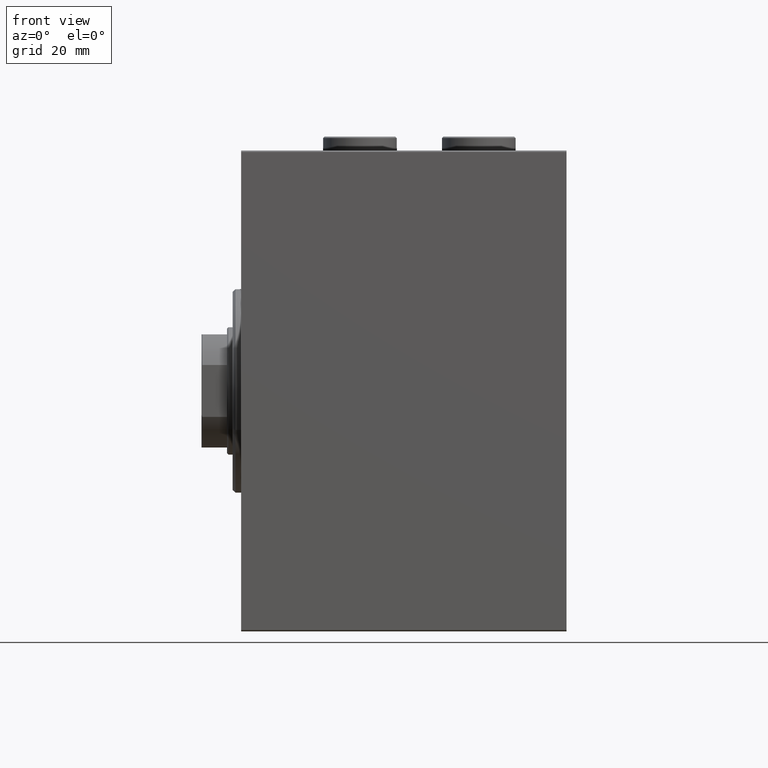
[diagram: clean part render]
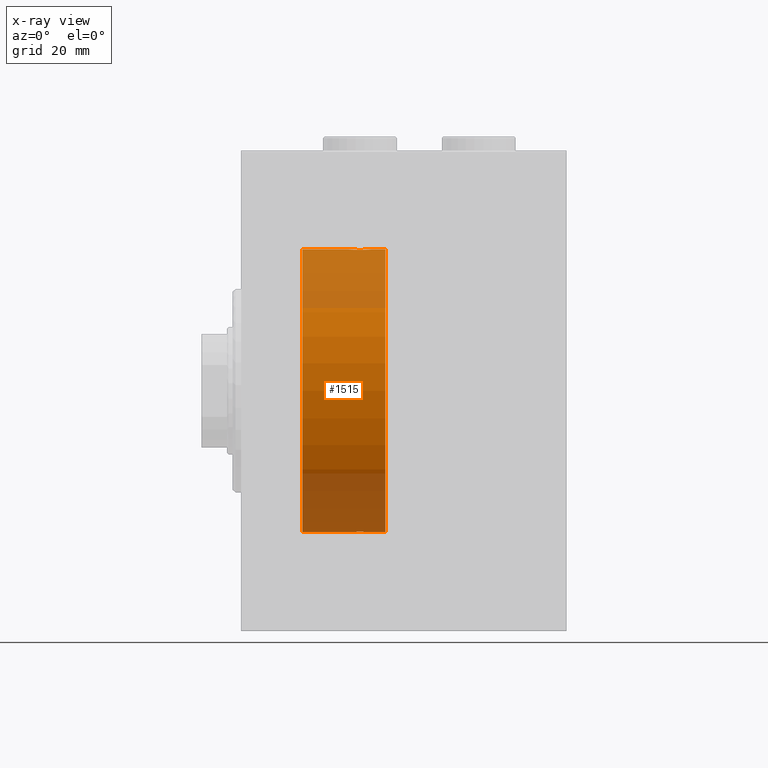
[diagram: x-ray — body ghosted, one internal face saturated and labeled with its STEP entity id]
A machine part, front view, then the same camera in x-ray: the body is ghosted and one INTERNAL B-rep face — a face not visible from any outside direction — is saturated and labeled: STEP entity #1515.
In plain terms, the highlighted cylindrical surface (partial cylindrical patch) has radius 50 mm, axis along (-1, -0, -0).
Its self-contained STEP definition (entity closure, byte-faithful):
#927 = CARTESIAN_POINT ( 'NONE',  ( 51.00000000000000000, 6.123233995736766085E-15, -50.00000000000000000 ) ) ;
#1093 = CARTESIAN_POINT ( 'NONE',  ( 42.55408564880149669, -4.222816005855207777, 49.82138837911247009 ) ) ;
#1233 = VERTEX_POINT ( 'NONE', #8166 ) ;
#1417 = EDGE_CURVE ( 'NONE', #1233, #14491, #5564, .T. ) ;
#1515 = ADVANCED_FACE ( 'NONE', ( #15610 ), #4892, .F. ) ;
#2165 = CARTESIAN_POINT ( 'NONE',  ( 38.31397167878049714, -2.133925816755172455, -49.95498245321557818 ) ) ;
#2382 = LINE ( 'NONE', #6035, #43600 ) ;
#2392 = CARTESIAN_POINT ( 'NONE',  ( 39.87368355124921493, -3.690299572754706325, -49.86386974736159772 ) ) ;
#2519 = DIRECTION ( 'NONE',  ( 0.000000000000000000, 0.000000000000000000, 1.000000000000000000 ) ) ;
#2852 = CARTESIAN_POINT ( 'NONE',  ( 43.10323296034215446, -4.113647494206469801, -49.83052139214892406 ) ) ;
#3541 = VECTOR ( 'NONE', #18829, 1000.000000000000000 ) ;
#3542 = CARTESIAN_POINT ( 'NONE',  ( 37.75000000000000711, 3.968053759906218216E-15, -50.00000000000000000 ) ) ;
#3755 = VERTEX_POINT ( 'NONE', #33748 ) ;
#4182 = VECTOR ( 'NONE', #26017, 1000.000000000000000 ) ;
#4534 = CARTESIAN_POINT ( 'NONE',  ( 41.71604712973302043, -4.249777379711404457, 49.81906655360197789 ) ) ;
#4758 = CARTESIAN_POINT ( 'NONE',  ( 45.19921927961281938, -2.811461347331110083, 49.92127983148853332 ) ) ;
#4892 = CYLINDRICAL_SURFACE ( 'NONE', #17967, 50.00000000000000000 ) ;
#4907 = CARTESIAN_POINT ( 'NONE',  ( 51.00000000000000000, 6.123233995736766085E-15, -50.00000000000000000 ) ) ;
#4977 = CARTESIAN_POINT ( 'NONE',  ( 37.75000000000000711, -2.480770331693776875E-23, 50.00000000000000000 ) ) ;
#5564 = CIRCLE ( 'NONE', #16487, 50.00000000000000000 ) ;
#5819 = CARTESIAN_POINT ( 'NONE',  ( 43.37333436579038448, -4.031616700143171528, -49.83731072121799599 ) ) ;
#6035 = CARTESIAN_POINT ( 'NONE',  ( 51.00000000000000000, 0.000000000000000000, 50.00000000000000000 ) ) ;
#6053 = EDGE_CURVE ( 'NONE', #3755, #26836, #15409, .T. ) ;
#6172 = ORIENTED_EDGE ( 'NONE', *, *, #11792, .F. ) ;
#6507 = CARTESIAN_POINT ( 'NONE',  ( 44.59312720885954917, -3.378657745070611895, -49.88595615988430154 ) ) ;
#6974 = EDGE_CURVE ( 'NONE', #37031, #29877, #24017, .T. ) ;
#7434 = EDGE_CURVE ( 'NONE', #37031, #14491, #2382, .T. ) ;
#7944 = CARTESIAN_POINT ( 'NONE',  ( 37.88568086693992143, -1.101350136471743291, 49.98862054280449030 ) ) ;
#8166 = CARTESIAN_POINT ( 'NONE',  ( 21.60000000000000142, 6.123233995736766085E-15, -50.00000000000000000 ) ) ;
#8171 = CARTESIAN_POINT ( 'NONE',  ( 38.31062844320614857, -2.128188802142364722, 49.95522967821975158 ) ) ;
#8184 = ORIENTED_EDGE ( 'NONE', *, *, #42530, .T. ) ;
#8352 = B_SPLINE_CURVE_WITH_KNOTS ( 'NONE', 3,
 ( #36848, #16544, #26358, #43908, #44371, #13115, #27046, #23625, #30699, #30241, #6507, #37080, #40962, #5819, #2852, #34109, #16779, #13340, #41185, #9920, #44133, #20425, #2392, #40275, #9005, #22929, #33424, #2165, #38674, #31817, #13806, #17467, #41867, #3542 ),
 .UNSPECIFIED., .F., .F.,
 ( 4, 2, 2, 2, 2, 2, 2, 2, 2, 2, 2, 2, 2, 2, 2, 2, 4 ),
 ( 0.01329343152928757349, 0.01412407817529635554, 0.01495472482130513932, 0.01578537146731392310, 0.01661601811332270515, 0.01744666475933148719, 0.01827731140534026924, 0.01910795805134905129, 0.01993860469735783680, 0.02076925134336661885, 0.02159989798937540090, 0.02243054463538418294, 0.02326119128139296499, 0.02409183792740174704, 0.02492248457341052909, 0.02575313121941931460, 0.02658377786542809665 ),
 .UNSPECIFIED. ) ;
#8391 = CARTESIAN_POINT ( 'NONE',  ( 46.22242635520781562, -0.5587117664567141651, 49.99763378604805553 ) ) ;
#9005 = CARTESIAN_POINT ( 'NONE',  ( 39.19302168160690769, -3.203153387937303087, -49.89767833571684008 ) ) ;
#9593 = DIRECTION ( 'NONE',  ( -1.000000000000000000, 0.000000000000000000, 0.000000000000000000 ) ) ;
#9920 = CARTESIAN_POINT ( 'NONE',  ( 40.90262382120962315, -4.115209769591094968, -49.83039196709103891 ) ) ;
#9993 = CARTESIAN_POINT ( 'NONE',  ( 51.00000000000000000, 0.000000000000000000, 50.00000000000000000 ) ) ;
#10542 = EDGE_CURVE ( 'NONE', #10966, #29877, #19856, .T. ) ;
#10858 = CIRCLE ( 'NONE', #21048, 50.00000000000000000 ) ;
#10966 = VERTEX_POINT ( 'NONE', #9993 ) ;
#11792 = EDGE_CURVE ( 'NONE', #3755, #10966, #10858, .T. ) ;
#11822 = CARTESIAN_POINT ( 'NONE',  ( 46.11249701080335228, -1.108337267831491335, 49.98846998601261049 ) ) ;
#11989 = CARTESIAN_POINT ( 'NONE',  ( 46.25000000000000000, 6.123233970928975205E-15, -50.00000000000000000 ) ) ;
#12393 = CARTESIAN_POINT ( 'NONE',  ( 21.60000000000000142, 0.000000000000000000, 50.00000000000000000 ) ) ;
#13115 = CARTESIAN_POINT ( 'NONE',  ( 45.82100581985224608, -1.881229021238117749, -49.96525240872482954 ) ) ;
#13325 = ORIENTED_EDGE ( 'NONE', *, *, #7434, .F. ) ;
#13340 = CARTESIAN_POINT ( 'NONE',  ( 41.72275072962082021, -4.250219976861628446, -49.81902879621016211 ) ) ;
#13806 = CARTESIAN_POINT ( 'NONE',  ( 37.88750298919665482, -1.108337267831482009, -49.98846998601261760 ) ) ;
#14491 = VERTEX_POINT ( 'NONE', #12393 ) ;
#14543 = CARTESIAN_POINT ( 'NONE',  ( 37.75000000000000711, 3.968053759906218216E-15, -50.00000000000000000 ) ) ;
#14583 = CARTESIAN_POINT ( 'NONE',  ( 42.27724927037918690, -4.250219976861644433, 49.81902879621014080 ) ) ;
#14839 = ORIENTED_EDGE ( 'NONE', *, *, #6053, .T. ) ;
#14945 = DIRECTION ( 'NONE',  ( -1.000000000000000000, -0.000000000000000000, -0.000000000000000000 ) ) ;
#15255 = CARTESIAN_POINT ( 'NONE',  ( 45.68602832121950286, -2.133925816755179117, 49.95498245321557818 ) ) ;
#15395 = CARTESIAN_POINT ( 'NONE',  ( 51.00000000000000000, 0.000000000000000000, 0.000000000000000000 ) ) ;
#15409 = LINE ( 'NONE', #4907, #3541 ) ;
#15610 = FACE_OUTER_BOUND ( 'NONE', #35381, .T. ) ;
#16487 = AXIS2_PLACEMENT_3D ( 'NONE', #42106, #39136, #17486 ) ;
#16544 = CARTESIAN_POINT ( 'NONE',  ( 46.25000000000000711, -0.2773743941468470586, -50.00000000000000711 ) ) ;
#16779 = CARTESIAN_POINT ( 'NONE',  ( 42.28395287026697247, -4.249777379711388470, -49.81906655360197789 ) ) ;
#17467 = CARTESIAN_POINT ( 'NONE',  ( 37.77757364479219149, -0.5587117664567073927, -49.99763378604802000 ) ) ;
#17486 = DIRECTION ( 'NONE',  ( 0.000000000000000000, 0.000000000000000000, 1.000000000000000000 ) ) ;
#17967 = AXIS2_PLACEMENT_3D ( 'NONE', #15395, #14945, #29531 ) ;
#17998 = CARTESIAN_POINT ( 'NONE',  ( 38.17899418014774682, -1.881229021238125743, 49.96525240872482954 ) ) ;
#18239 = CARTESIAN_POINT ( 'NONE',  ( 37.96727357902688738, -1.369753890039652200, 49.98188917176553048 ) ) ;
#18451 = CARTESIAN_POINT ( 'NONE',  ( 43.36710647554575360, -4.033756670430847180, 49.83713703490975178 ) ) ;
#18673 = CARTESIAN_POINT ( 'NONE',  ( 45.37519984081966840, -2.597781786597462172, 49.93300953359122474 ) ) ;
#18829 = DIRECTION ( 'NONE',  ( -1.000000000000000000, -0.000000000000000000, -0.000000000000000000 ) ) ;
#18898 = CARTESIAN_POINT ( 'NONE',  ( 46.25000000000000000, -1.456404791334935357E-15, 50.00000000000000000 ) ) ;
#19856 = LINE ( 'NONE', #33772, #24781 ) ;
#20425 = CARTESIAN_POINT ( 'NONE',  ( 40.11782950515556934, -3.820681512513366851, -49.85392475515399724 ) ) ;
#21048 = AXIS2_PLACEMENT_3D ( 'NONE', #30366, #9593, #2519 ) ;
#21876 = CARTESIAN_POINT ( 'NONE',  ( 43.88217049484444487, -3.820681512513379730, 49.85392475515401145 ) ) ;
#22104 = CARTESIAN_POINT ( 'NONE',  ( 43.09737617879037685, -4.115209769591108291, 49.83039196709103891 ) ) ;
#22314 = CARTESIAN_POINT ( 'NONE',  ( 46.25000000000001421, -0.2808785465865648034, 50.00000000000001421 ) ) ;
#22929 = CARTESIAN_POINT ( 'NONE',  ( 38.80078072038718062, -2.811461347331092320, -49.92127983148853332 ) ) ;
#23625 = CARTESIAN_POINT ( 'NONE',  ( 45.37881717263738324, -2.593114840406115729, -49.93325460257640458 ) ) ;
#24017 = B_SPLINE_CURVE_WITH_KNOTS ( 'NONE', 3,
 ( #4977, #43078, #32369, #7944, #18239, #17998, #8171, #36016, #28951, #42854, #39445, #36237, #38999, #32813, #25532, #39222, #4534, #14583, #1093, #22104, #18451, #21876, #29395, #39666, #35339, #4758, #18673, #15255, #32592, #29181, #11822, #8391, #22314, #18898 ),
 .UNSPECIFIED., .F., .F.,
 ( 4, 2, 2, 2, 2, 2, 2, 2, 2, 2, 2, 2, 2, 2, 2, 2, 4 ),
 ( 0.01329343152928754573, 0.01412407817529632778, 0.01495472482130510983, 0.01578537146731389187, 0.01661601811332267392, 0.01744666475933145597, 0.01827731140534023802, 0.01910795805134902006, 0.01993860469735780558, 0.02076925134336658763, 0.02159989798937536967, 0.02243054463538415519, 0.02326119128139293724, 0.02409183792740172275, 0.02492248457341050133, 0.02575313121941928685, 0.02658377786542807236 ),
 .UNSPECIFIED. ) ;
#24283 = ORIENTED_EDGE ( 'NONE', *, *, #29643, .T. ) ;
#24781 = VECTOR ( 'NONE', #39949, 1000.000000000000000 ) ;
#25532 = CARTESIAN_POINT ( 'NONE',  ( 40.89676703965783133, -4.113647494206481348, 49.83052139214890985 ) ) ;
#26017 = DIRECTION ( 'NONE',  ( -1.000000000000000000, -0.000000000000000000, -0.000000000000000000 ) ) ;
#26358 = CARTESIAN_POINT ( 'NONE',  ( 46.22310752799001676, -0.5531336717328987351, -49.99769193709645521 ) ) ;
#26836 = VERTEX_POINT ( 'NONE', #11989 ) ;
#27046 = CARTESIAN_POINT ( 'NONE',  ( 45.68937155679385853, -2.128188802142354508, -49.95522967821975158 ) ) ;
#28951 = CARTESIAN_POINT ( 'NONE',  ( 38.79696438048011942, -2.807099414226279510, 49.92152599098507437 ) ) ;
#29181 = CARTESIAN_POINT ( 'NONE',  ( 46.03079796155343928, -1.375411031076041901, 49.98173289062310687 ) ) ;
#29395 = CARTESIAN_POINT ( 'NONE',  ( 44.12631644875080639, -3.690299572754719204, 49.86386974736159772 ) ) ;
#29531 = DIRECTION ( 'NONE',  ( 0.000000000000000000, 0.000000000000000000, 1.000000000000000000 ) ) ;
#29600 = ORIENTED_EDGE ( 'NONE', *, *, #6974, .T. ) ;
#29643 = EDGE_CURVE ( 'NONE', #26836, #44954, #8352, .T. ) ;
#29783 = DIRECTION ( 'NONE',  ( -1.000000000000000000, -0.000000000000000000, -0.000000000000000000 ) ) ;
#29877 = VERTEX_POINT ( 'NONE', #44316 ) ;
#30241 = CARTESIAN_POINT ( 'NONE',  ( 44.81153066515420136, -3.199146701881660171, -49.89793607725462010 ) ) ;
#30366 = CARTESIAN_POINT ( 'NONE',  ( 51.00000000000000000, 0.000000000000000000, 0.000000000000000000 ) ) ;
#30699 = CARTESIAN_POINT ( 'NONE',  ( 45.20303561951989479, -2.807099414226266632, -49.92152599098507437 ) ) ;
#31817 = CARTESIAN_POINT ( 'NONE',  ( 37.96920203844656783, -1.375411031076034130, -49.98173289062310687 ) ) ;
#32369 = CARTESIAN_POINT ( 'NONE',  ( 37.77689247200999745, -0.5531336717329046193, 49.99769193709644099 ) ) ;
#32592 = CARTESIAN_POINT ( 'NONE',  ( 45.81839248987871116, -1.886522330773416911, 49.96505190380066352 ) ) ;
#32813 = CARTESIAN_POINT ( 'NONE',  ( 40.62666563420964394, -4.031616700143185739, 49.83731072121799599 ) ) ;
#33424 = CARTESIAN_POINT ( 'NONE',  ( 38.62480015918035292, -2.597781786597455067, -49.93300953359122474 ) ) ;
#33748 = CARTESIAN_POINT ( 'NONE',  ( 51.00000000000000000, 6.123233995736766085E-15, -50.00000000000000000 ) ) ;
#33772 = CARTESIAN_POINT ( 'NONE',  ( 51.00000000000000000, 0.000000000000000000, 50.00000000000000000 ) ) ;
#34109 = CARTESIAN_POINT ( 'NONE',  ( 42.55997867695646164, -4.222042462213109637, -49.82145436824654183 ) ) ;
#35339 = CARTESIAN_POINT ( 'NONE',  ( 44.80697831839310652, -3.203153387937322183, 49.89767833571684719 ) ) ;
#35381 = EDGE_LOOP ( 'NONE', ( #6172, #14839, #24283, #8184, #44724, #13325, #29600, #36823 ) ) ;
#35563 = CARTESIAN_POINT ( 'NONE',  ( 37.75000000000000711, -2.480770331693776875E-23, 50.00000000000000000 ) ) ;
#36016 = CARTESIAN_POINT ( 'NONE',  ( 38.62118282736263097, -2.593114840406127275, 49.93325460257640458 ) ) ;
#36237 = CARTESIAN_POINT ( 'NONE',  ( 39.86863600553844833, -3.687400765141529924, 49.86408552998297949 ) ) ;
#36823 = ORIENTED_EDGE ( 'NONE', *, *, #10542, .F. ) ;
#36848 = CARTESIAN_POINT ( 'NONE',  ( 46.25000000000000000, 6.123233970928975205E-15, -50.00000000000000000 ) ) ;
#37031 = VERTEX_POINT ( 'NONE', #35563 ) ;
#37080 = CARTESIAN_POINT ( 'NONE',  ( 44.13136399446156588, -3.687400765141517045, -49.86408552998297239 ) ) ;
#38674 = CARTESIAN_POINT ( 'NONE',  ( 38.18160751012128884, -1.886522330773408695, -49.96505190380065642 ) ) ;
#38999 = CARTESIAN_POINT ( 'NONE',  ( 40.11255260607202899, -3.818052230167721106, 49.85412671291931730 ) ) ;
#39136 = DIRECTION ( 'NONE',  ( -1.000000000000000000, 0.000000000000000000, 0.000000000000000000 ) ) ;
#39222 = CARTESIAN_POINT ( 'NONE',  ( 41.44002132304352415, -4.222042462213121183, 49.82145436824653473 ) ) ;
#39445 = CARTESIAN_POINT ( 'NONE',  ( 39.40687279114044372, -3.378657745070624774, 49.88595615988428733 ) ) ;
#39666 = CARTESIAN_POINT ( 'NONE',  ( 44.58820214676200777, -3.382416624899779123, 49.88570010427956447 ) ) ;
#39949 = DIRECTION ( 'NONE',  ( -1.000000000000000000, -0.000000000000000000, -0.000000000000000000 ) ) ;
#40275 = CARTESIAN_POINT ( 'NONE',  ( 39.41179785323798512, -3.382416624899766244, -49.88570010427955026 ) ) ;
#40962 = CARTESIAN_POINT ( 'NONE',  ( 43.88744739392799943, -3.818052230167706007, -49.85412671291931730 ) ) ;
#41185 = CARTESIAN_POINT ( 'NONE',  ( 41.44591435119851752, -4.222816005855191790, -49.82138837911247720 ) ) ;
#41867 = CARTESIAN_POINT ( 'NONE',  ( 37.75000000000001421, -0.2808785465865586972, -50.00000000000001421 ) ) ;
#42106 = CARTESIAN_POINT ( 'NONE',  ( 21.60000000000000142, 0.000000000000000000, 0.000000000000000000 ) ) ;
#42530 = EDGE_CURVE ( 'NONE', #44954, #1233, #43344, .T. ) ;
#42854 = CARTESIAN_POINT ( 'NONE',  ( 39.18846933484581285, -3.199146701881674382, 49.89793607725460589 ) ) ;
#43078 = CARTESIAN_POINT ( 'NONE',  ( 37.74999999999999289, -0.2773743941468536645, 50.00000000000000000 ) ) ;
#43344 = LINE ( 'NONE', #927, #4182 ) ;
#43600 = VECTOR ( 'NONE', #29783, 1000.000000000000000 ) ;
#43908 = CARTESIAN_POINT ( 'NONE',  ( 46.11431913306007147, -1.101350136471736407, -49.98862054280446898 ) ) ;
#44133 = CARTESIAN_POINT ( 'NONE',  ( 40.63289352445425351, -4.033756670430834745, -49.83713703490973757 ) ) ;
#44316 = CARTESIAN_POINT ( 'NONE',  ( 46.25000000000000000, -1.456404791334935357E-15, 50.00000000000000000 ) ) ;
#44371 = CARTESIAN_POINT ( 'NONE',  ( 46.03272642097310552, -1.369753890039644872, -49.98188917176551627 ) ) ;
#44724 = ORIENTED_EDGE ( 'NONE', *, *, #1417, .T. ) ;
#44954 = VERTEX_POINT ( 'NONE', #14543 ) ;